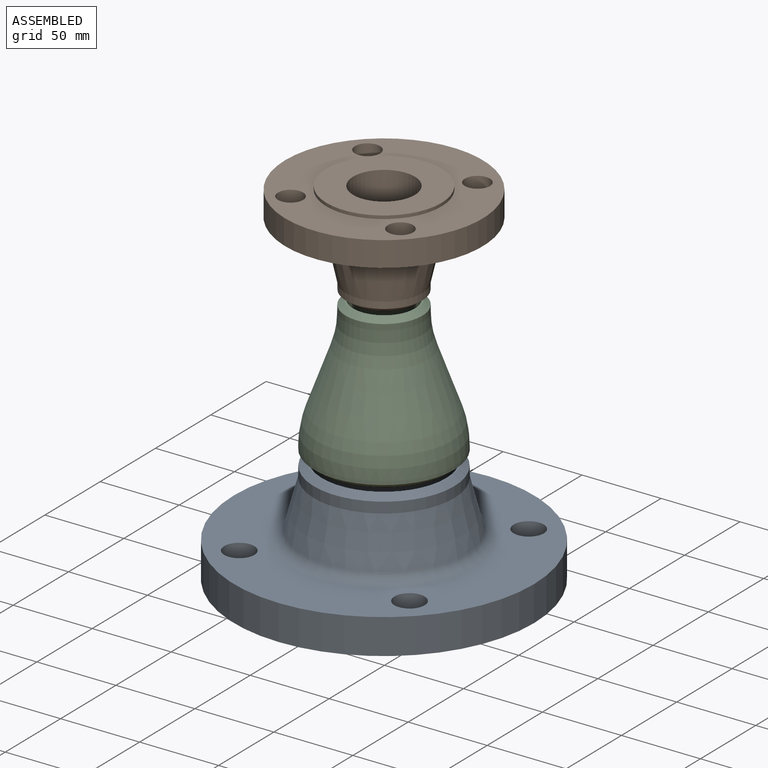
[diagram: assembled view]
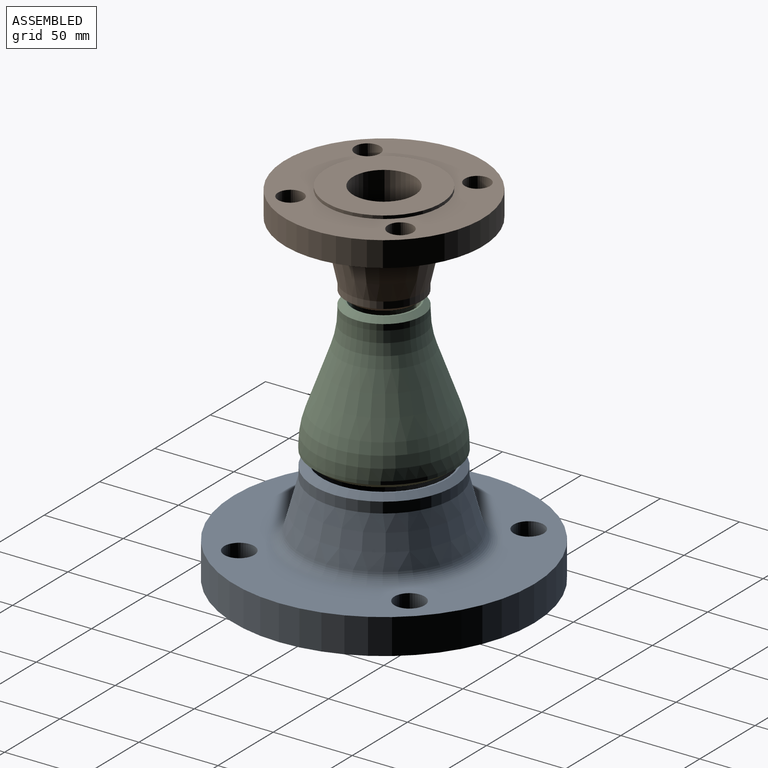
[diagram: assembled view, second angle]
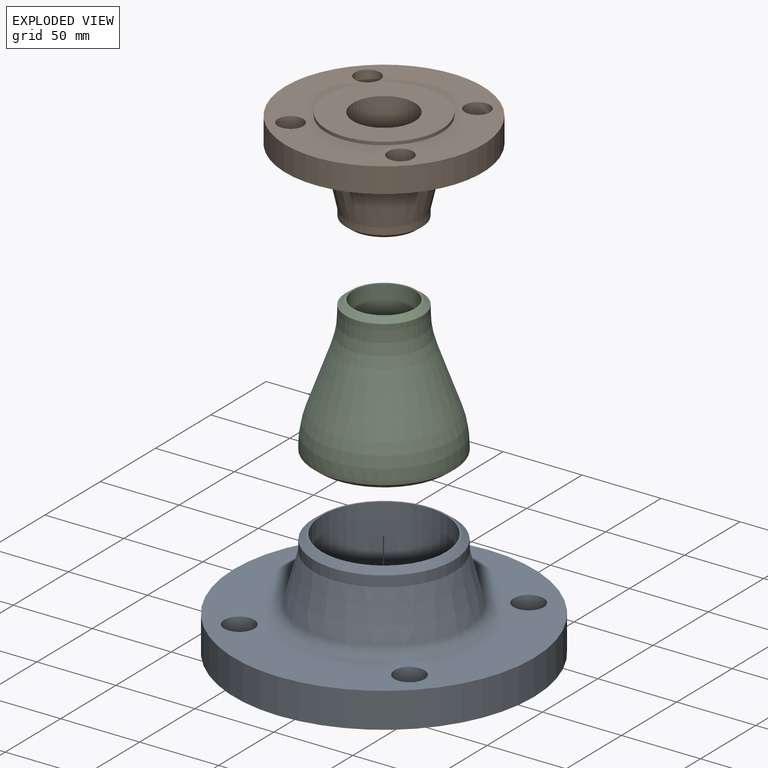
[diagram: exploded view]
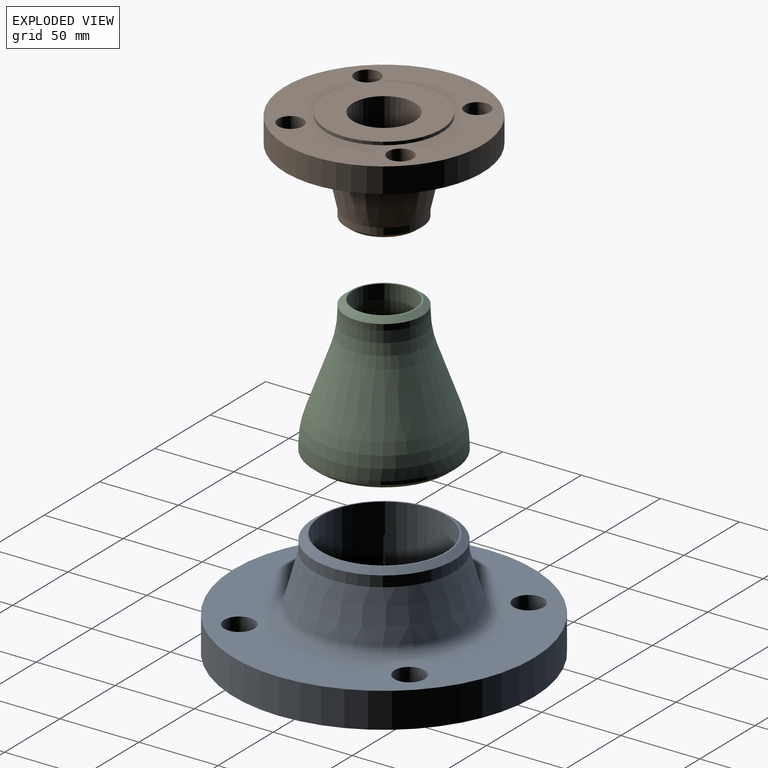
[diagram: exploded view, second angle]
ASSEMBLY  parts=3 mates=2
PART A: 16 faces, bbox 190x190x70 mm
  f0: plane 80.5x80.5mm, normal (0,0,1), area 249.8mm2, adj f1,f13
  f1: cylinder r=39.25mm len=78.5mm, axis (0,0,1), area 17263.1mm2, adj f0,f2
  f2: plane 127x127mm, normal (0,0,-1), area 7827.9mm2, adj f1,f3
  f3: cylinder r=63.5mm len=127mm, axis (0,0,1), area 798mm2, adj f2,f4
  f4: plane 190x190mm, normal (0,0,-1), area 14545.1mm2, adj f3,f5,f9,f10,f11,f12
  f5: cylinder r=95mm len=190mm, axis (0,0,1), area 13310.9mm2, adj f4,f6
  f6: plane 190x190mm, normal (0,0,1), area 15849.7mm2, adj f5,f9,f10,f11,f12,f15
  f7: cone r=54mm half-angle=15deg, axis (0,0,-1), area 9376.8mm2, adj f8,f15
  f8: cylinder r=44.45mm len=88.9mm, axis (0,0,1), area 1892.5mm2, adj f7,f14
  f9: cylinder r=9.53mm len=22.3mm, axis (0,0,1), area 1334.6mm2, adj f4,f6
  f10: cylinder r=9.53mm len=22.3mm, axis (0,0,1), area 1334.6mm2, adj f4,f6
  f11: cylinder r=9.53mm len=22.3mm, axis (0,0,1), area 1334.6mm2, adj f4,f6
  f12: cylinder r=9.53mm len=22.3mm, axis (0,0,1), area 1334.6mm2, adj f4,f6
  f13: cylinder r=40.25mm len=80.5mm, axis (0,0,-1), area 0.3mm2, adj f0,f14
  f14: cone r=40.25mm half-angle=52.5deg, axis (0,0,-1), area 1408.7mm2, adj f8,f13
  f15: torus R=60.14mm, axis (0,0,-1), area 3660.2mm2, adj f6,f7
PART B: 16 faces, bbox 125x125x62 mm
  f0: plane 41.1x41.1mm, normal (0,0,1), area 126mm2, adj f1,f13
  f1: cylinder r=19.55mm len=62mm, axis (0,0,1), area 7615.8mm2, adj f0,f2
  f2: plane 73x73mm, normal (0,0,-1), area 2984.7mm2, adj f1,f3
  f3: cylinder r=36.5mm len=73mm, axis (0,0,1), area 458.7mm2, adj f2,f4
  f4: plane 125x125mm, normal (0,0,-1), area 7294.7mm2, adj f3,f5,f9,f10,f11,f12
  f5: cylinder r=62.5mm len=125mm, axis (0,0,1), area 6243.9mm2, adj f4,f6
  f6: plane 125x125mm, normal (0,0,1), area 7109.3mm2, adj f5,f9,f10,f11,f12,f15
  f7: cone r=32.5mm half-angle=12.7deg, axis (0,0,-1), area 5803.7mm2, adj f8,f15
  f8: cylinder r=24.15mm len=48.3mm, axis (0,0,1), area 642.9mm2, adj f7,f14
  f9: cylinder r=7.94mm len=15.9mm, axis (0,0,1), area 793mm2, adj f4,f6
  f10: cylinder r=7.94mm len=15.9mm, axis (0,0,1), area 793mm2, adj f4,f6
  f11: cylinder r=7.94mm len=15.9mm, axis (0,0,1), area 793mm2, adj f4,f6
  f12: cylinder r=7.94mm len=15.9mm, axis (0,0,1), area 793mm2, adj f4,f6
  f13: cylinder r=20.55mm len=41.1mm, axis (0,0,-1), area 0.1mm2, adj f0,f14
  f14: cone r=20.55mm half-angle=52.5deg, axis (0,0,-1), area 637.2mm2, adj f8,f13
  f15: torus R=37.3mm, axis (0,0,-1), area 1721mm2, adj f6,f7
PART C: 16 faces, bbox 122.4x90.2x90.2 mm
  f0: cylinder r=44.5mm len=89mm, axis (-1,0,0), area 603.7mm2, adj f3,f12
  f1: cone r=44.5mm half-angle=20deg, axis (1,0,0), area 8217.7mm2, adj f12,f13
  f2: cylinder r=24.25mm len=48.5mm, axis (-1,0,0), area 570.6mm2, adj f4,f13
  f3: cone r=40.25mm half-angle=52.5deg, axis (-1,0,0), area 1426.3mm2, adj f0,f5
  f4: cone r=20.55mm half-angle=52.5deg, axis (1,0,0), area 656.4mm2, adj f2,f11
  f5: plane 80.5x80.5mm, normal (1,0,0), area 249.8mm2, adj f3,f6
  f6: cylinder r=39.25mm len=78.5mm, axis (1,0,0), area 1233.1mm2, adj f5,f7
  f7: plane 78.5x78.5mm, normal (1,0,0), area 134.7mm2, adj f6,f9
  f8: cone r=38.7mm half-angle=20deg, axis (1,0,0), area 6374.1mm2, adj f14,f15
  f9: cylinder r=38.7mm len=77.4mm, axis (-1,0,0), area 244.6mm2, adj f7,f15
  f10: cylinder r=19.55mm len=39.1mm, axis (-1,0,0), area 1108.1mm2, adj f11,f14
  f11: plane 41.1x41.1mm, normal (-1,0,0), area 126mm2, adj f4,f10
  f12: revolved ~89x89mm, area 5696.6mm2, adj f0,f1
  f13: torus R=84.25mm, axis (-1,0,0), area 3350.5mm2, adj f1,f2
  f14: torus R=79.55mm, axis (1,0,0), area 2732mm2, adj f8,f10
  f15: revolved ~77.4x77.4mm, area 4933.3mm2, adj f8,f9
PLACE A t=(-0.26,-0.06,-34.86)mm fixed
PLACE B rot(axis=(0,1,0),180deg) t=(-0.26,-0.06,191.94)mm
PLACE C rot(axis=(0,1,0),90deg) t=(-0.26,-0.06,126.94)mm
MATE fastened C.f0 <-> A.f1  axis (0,0,1) through (-0.26,-0.06,38.14)mm
MATE fastened B.f1 <-> C.f0  axis (0,0,1) through (-0.26,-0.06,129.94)mm
